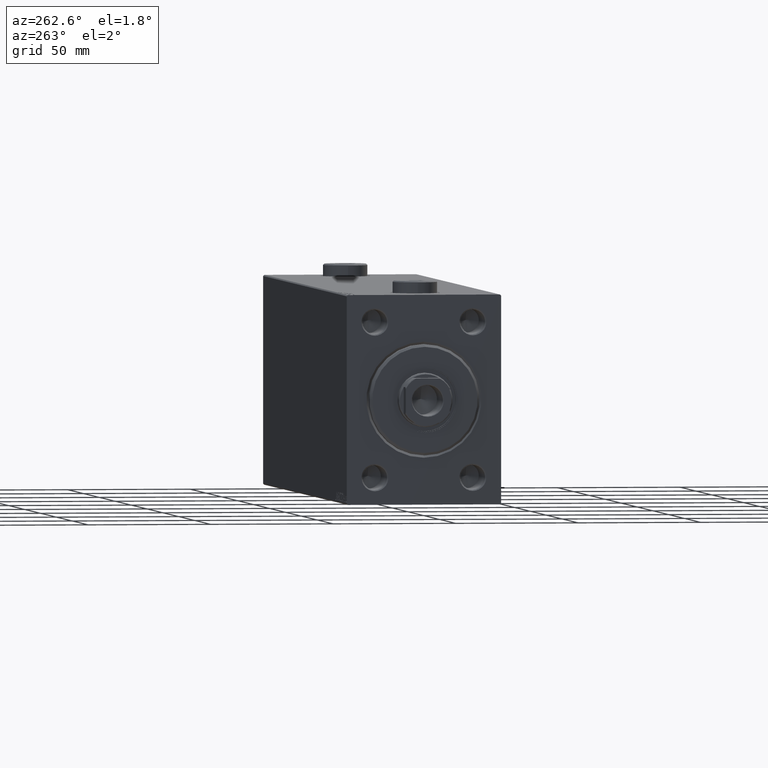
[diagram: clean part render]
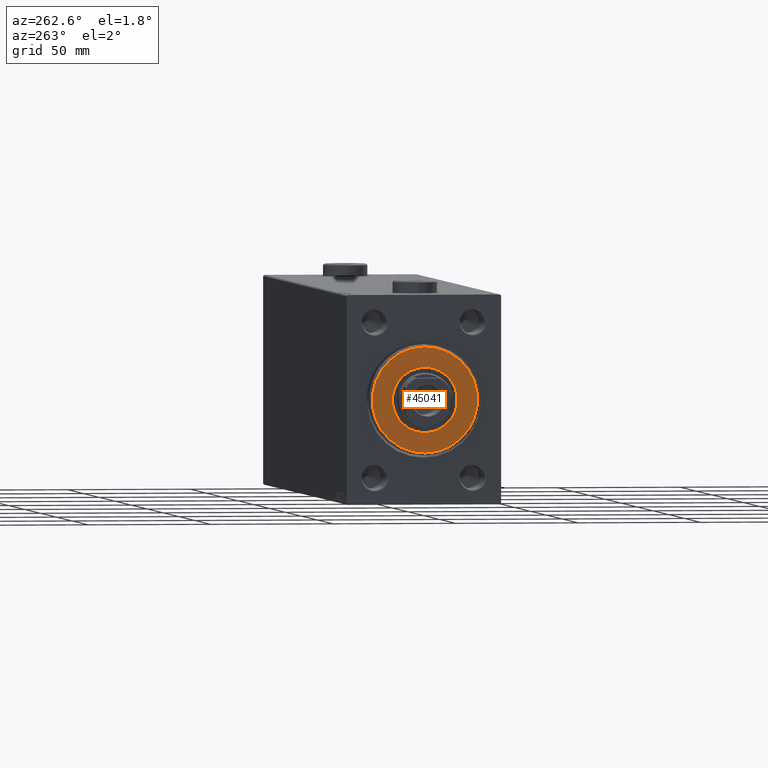
[diagram: same view with one face highlighted and labeled with its STEP entity id]
A machine part, auxiliary view. The second image highlights one B-rep face of the part: STEP entity #45041.
In plain terms, the highlighted planar face has unit normal (-1, 0, 0).
Its self-contained STEP definition (entity closure, byte-faithful):
#818 = DIRECTION ( 'NONE',  ( 0.000000000000000000, 0.000000000000000000, -1.000000000000000000 ) ) ;
#959 = CIRCLE ( 'NONE', #25263, 13.25000000000000178 ) ;
#3430 = EDGE_CURVE ( 'NONE', #26998, #30888, #959, .T. ) ;
#4884 = EDGE_CURVE ( 'NONE', #30888, #26998, #37050, .T. ) ;
#6856 = CARTESIAN_POINT ( 'NONE',  ( 3.000000000000000000, 0.000000000000000000, 0.000000000000000000 ) ) ;
#7362 = CARTESIAN_POINT ( 'NONE',  ( 3.000000000000000000, 0.000000000000000000, -13.25000000000000178 ) ) ;
#8128 = FACE_BOUND ( 'NONE', #36460, .T. ) ;
#10688 = DIRECTION ( 'NONE',  ( 1.000000000000000000, -0.000000000000000000, 0.000000000000000000 ) ) ;
#10768 = DIRECTION ( 'NONE',  ( 1.000000000000000000, 0.000000000000000000, 0.000000000000000000 ) ) ;
#12326 = CARTESIAN_POINT ( 'NONE',  ( 3.000000000000000000, 1.622657008870243277E-15, 13.25000000000000178 ) ) ;
#14105 = ORIENTED_EDGE ( 'NONE', *, *, #33603, .T. ) ;
#14135 = FACE_OUTER_BOUND ( 'NONE', #30409, .T. ) ;
#14222 = CARTESIAN_POINT ( 'NONE',  ( 3.000000000000000000, 0.000000000000000000, 0.000000000000000000 ) ) ;
#14258 = CARTESIAN_POINT ( 'NONE',  ( 3.000000000000000000, 0.000000000000000000, 21.50000000000000355 ) ) ;
#18046 = CARTESIAN_POINT ( 'NONE',  ( 3.000000000000000000, 0.000000000000000000, 0.000000000000000000 ) ) ;
#18671 = AXIS2_PLACEMENT_3D ( 'NONE', #34206, #45281, #27775 ) ;
#21967 = AXIS2_PLACEMENT_3D ( 'NONE', #6856, #31499, #818 ) ;
#22720 = ORIENTED_EDGE ( 'NONE', *, *, #32810, .T. ) ;
#23335 = ORIENTED_EDGE ( 'NONE', *, *, #3430, .F. ) ;
#24829 = DIRECTION ( 'NONE',  ( 0.000000000000000000, 0.000000000000000000, -1.000000000000000000 ) ) ;
#25263 = AXIS2_PLACEMENT_3D ( 'NONE', #14222, #10768, #24829 ) ;
#26774 = CARTESIAN_POINT ( 'NONE',  ( 3.000000000000000000, 0.000000000000000000, 0.000000000000000000 ) ) ;
#26998 = VERTEX_POINT ( 'NONE', #7362 ) ;
#27095 = CIRCLE ( 'NONE', #32976, 21.50000000000000355 ) ;
#27775 = DIRECTION ( 'NONE',  ( 0.000000000000000000, 0.000000000000000000, -1.000000000000000000 ) ) ;
#28861 = PLANE ( 'NONE',  #36966 ) ;
#29991 = DIRECTION ( 'NONE',  ( 1.000000000000000000, -0.000000000000000000, 0.000000000000000000 ) ) ;
#30409 = EDGE_LOOP ( 'NONE', ( #22720, #14105 ) ) ;
#30888 = VERTEX_POINT ( 'NONE', #12326 ) ;
#31434 = ORIENTED_EDGE ( 'NONE', *, *, #4884, .F. ) ;
#31499 = DIRECTION ( 'NONE',  ( 1.000000000000000000, -0.000000000000000000, 0.000000000000000000 ) ) ;
#32537 = DIRECTION ( 'NONE',  ( 0.000000000000000000, 0.000000000000000000, -1.000000000000000000 ) ) ;
#32810 = EDGE_CURVE ( 'NONE', #37589, #36597, #27095, .T. ) ;
#32976 = AXIS2_PLACEMENT_3D ( 'NONE', #26774, #29991, #43822 ) ;
#33603 = EDGE_CURVE ( 'NONE', #36597, #37589, #43298, .T. ) ;
#34206 = CARTESIAN_POINT ( 'NONE',  ( 3.000000000000000000, 0.000000000000000000, 0.000000000000000000 ) ) ;
#36460 = EDGE_LOOP ( 'NONE', ( #23335, #31434 ) ) ;
#36597 = VERTEX_POINT ( 'NONE', #43033 ) ;
#36966 = AXIS2_PLACEMENT_3D ( 'NONE', #18046, #10688, #32537 ) ;
#37050 = CIRCLE ( 'NONE', #18671, 13.25000000000000178 ) ;
#37589 = VERTEX_POINT ( 'NONE', #14258 ) ;
#43033 = CARTESIAN_POINT ( 'NONE',  ( 3.000000000000000000, 2.694222958124177598E-15, -21.50000000000000355 ) ) ;
#43298 = CIRCLE ( 'NONE', #21967, 21.50000000000000355 ) ;
#43822 = DIRECTION ( 'NONE',  ( 0.000000000000000000, 0.000000000000000000, -1.000000000000000000 ) ) ;
#45041 = ADVANCED_FACE ( 'NONE', ( #14135, #8128 ), #28861, .T. ) ;
#45281 = DIRECTION ( 'NONE',  ( 1.000000000000000000, 0.000000000000000000, 0.000000000000000000 ) ) ;